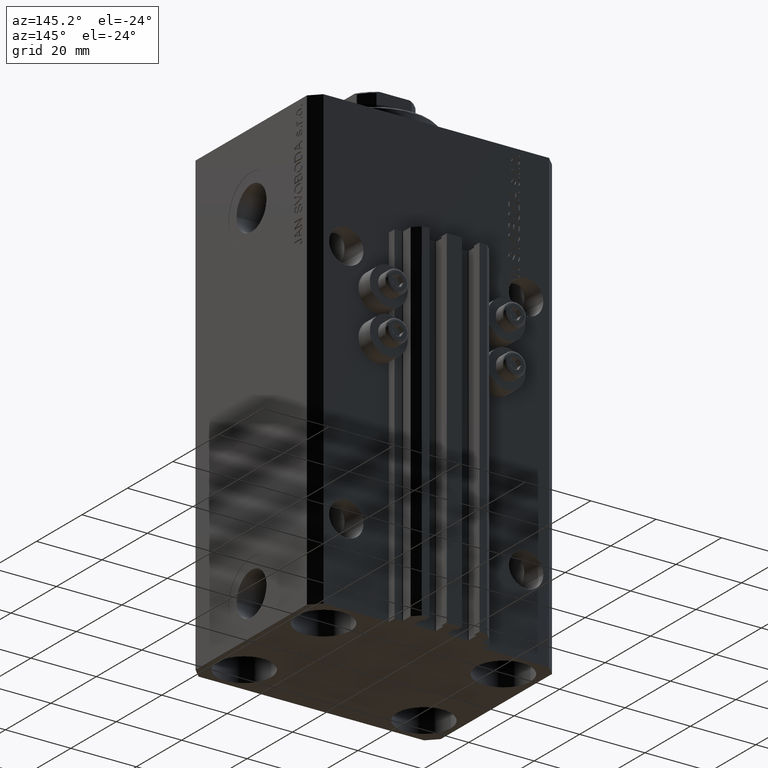
[diagram: clean part render]
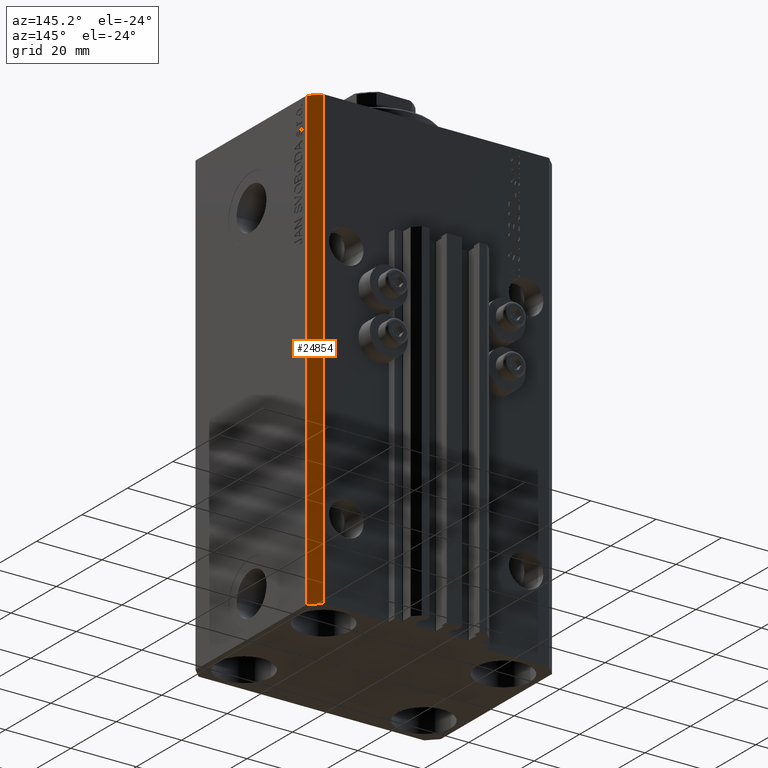
[diagram: same view with one face highlighted and labeled with its STEP entity id]
A machine part, auxiliary view. The second image highlights one B-rep face of the part: STEP entity #24854.
In plain terms, the highlighted planar face has unit normal (0.7071, 0.7071, 0).
Its self-contained STEP definition (entity closure, byte-faithful):
#3105 = CARTESIAN_POINT ( 'NONE',  ( 37.50000000000051870, 24.49999999999995381, -140.0000000000000000 ) ) ;
#5955 = CARTESIAN_POINT ( 'NONE',  ( 34.50000000000056843, 27.50000000000000000, -140.0000000000000000 ) ) ;
#6449 = ORIENTED_EDGE ( 'NONE', *, *, #16024, .F. ) ;
#7605 = CARTESIAN_POINT ( 'NONE',  ( 37.50000000000051870, 24.49999999999995381, -140.0000000000000000 ) ) ;
#9590 = LINE ( 'NONE', #5955, #28488 ) ;
#9867 = EDGE_CURVE ( 'NONE', #15818, #47538, #34260, .T. ) ;
#14718 = DIRECTION ( 'NONE',  ( 0.7071067811865593411, 0.7071067811865356934, -0.000000000000000000 ) ) ;
#15818 = VERTEX_POINT ( 'NONE', #42292 ) ;
#16024 = EDGE_CURVE ( 'NONE', #19595, #15818, #46869, .T. ) ;
#17160 = VECTOR ( 'NONE', #25780, 1000.000000000000114 ) ;
#18988 = EDGE_CURVE ( 'NONE', #30620, #47538, #9590, .T. ) ;
#19143 = CARTESIAN_POINT ( 'NONE',  ( 34.50000000000056843, 27.50000000000000000, -140.0000000000000000 ) ) ;
#19595 = VERTEX_POINT ( 'NONE', #3105 ) ;
#20747 = DIRECTION ( 'NONE',  ( 0.000000000000000000, 0.000000000000000000, 1.000000000000000000 ) ) ;
#23458 = EDGE_LOOP ( 'NONE', ( #24345, #6449, #41457, #29712 ) ) ;
#23839 = DIRECTION ( 'NONE',  ( -0.7071067811865356934, 0.7071067811865594521, 0.000000000000000000 ) ) ;
#24345 = ORIENTED_EDGE ( 'NONE', *, *, #9867, .F. ) ;
#24854 = ADVANCED_FACE ( 'NONE', ( #25400 ), #25871, .T. ) ;
#25400 = FACE_OUTER_BOUND ( 'NONE', #23458, .T. ) ;
#25780 = DIRECTION ( 'NONE',  ( -0.7071067811865356934, 0.7071067811865594521, 0.000000000000000000 ) ) ;
#25871 = PLANE ( 'NONE',  #32904 ) ;
#27477 = VECTOR ( 'NONE', #23839, 1000.000000000000114 ) ;
#28488 = VECTOR ( 'NONE', #20747, 1000.000000000000000 ) ;
#29712 = ORIENTED_EDGE ( 'NONE', *, *, #18988, .T. ) ;
#30620 = VERTEX_POINT ( 'NONE', #19143 ) ;
#31974 = CARTESIAN_POINT ( 'NONE',  ( 34.50000000000056843, 27.50000000000000000, 0.000000000000000000 ) ) ;
#32904 = AXIS2_PLACEMENT_3D ( 'NONE', #47885, #14718, #40164 ) ;
#34260 = LINE ( 'NONE', #34494, #27477 ) ;
#34494 = CARTESIAN_POINT ( 'NONE',  ( 37.50000000000051870, 24.49999999999995381, 0.000000000000000000 ) ) ;
#40164 = DIRECTION ( 'NONE',  ( -0.7071067811865356934, 0.7071067811865593411, 0.000000000000000000 ) ) ;
#41457 = ORIENTED_EDGE ( 'NONE', *, *, #42523, .T. ) ;
#42292 = CARTESIAN_POINT ( 'NONE',  ( 37.50000000000051870, 24.49999999999995381, 0.000000000000000000 ) ) ;
#42523 = EDGE_CURVE ( 'NONE', #19595, #30620, #45113, .T. ) ;
#43246 = DIRECTION ( 'NONE',  ( 0.000000000000000000, 0.000000000000000000, 1.000000000000000000 ) ) ;
#45113 = LINE ( 'NONE', #7605, #17160 ) ;
#45356 = VECTOR ( 'NONE', #43246, 1000.000000000000000 ) ;
#46869 = LINE ( 'NONE', #47339, #45356 ) ;
#47339 = CARTESIAN_POINT ( 'NONE',  ( 37.50000000000051870, 24.49999999999995381, -140.0000000000000000 ) ) ;
#47538 = VERTEX_POINT ( 'NONE', #31974 ) ;
#47885 = CARTESIAN_POINT ( 'NONE',  ( 37.50000000000051870, 24.49999999999995381, -140.0000000000000000 ) ) ;